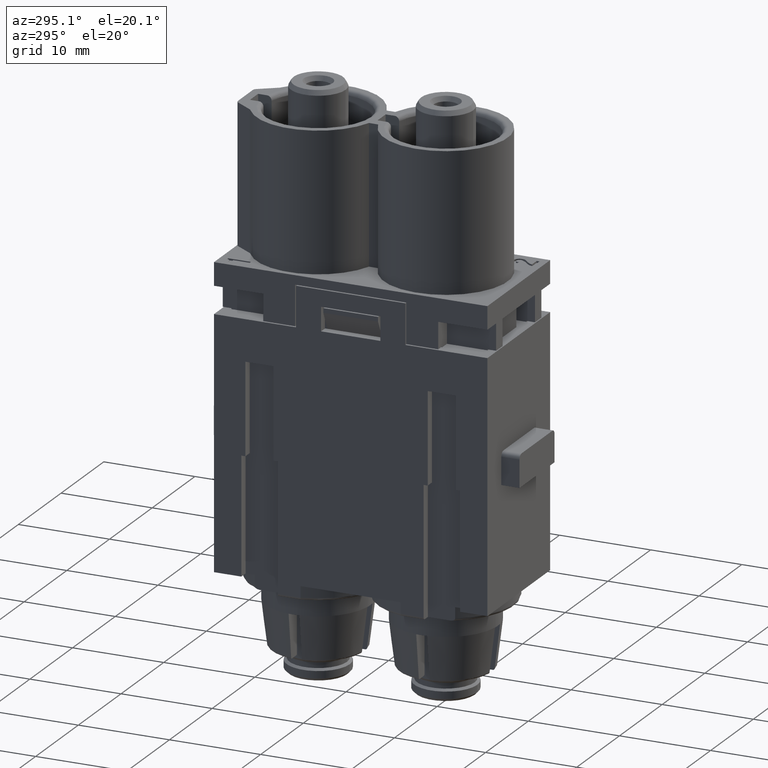
[diagram: clean part render]
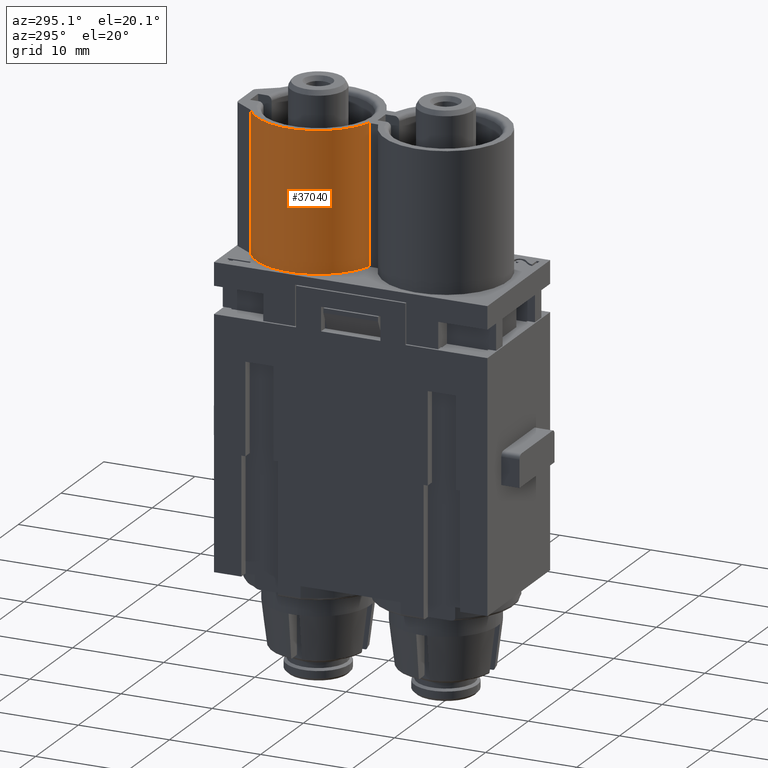
[diagram: same view with one face highlighted and labeled with its STEP entity id]
A machine part, auxiliary view. The second image highlights one B-rep face of the part: STEP entity #37040.
In plain terms, the highlighted cylindrical surface (partial cylindrical patch) has radius 6.8 mm, axis along (0, 0, -1).
Its self-contained STEP definition (entity closure, byte-faithful):
#10220=CARTESIAN_POINT('',(64.6468229999997,67.4552842762907,
0.399999999999977));
#10230=VERTEX_POINT('',#10220);
#10260=CARTESIAN_POINT('',(66.6468229999996,73.9545149999996,
0.40000000000002));
#10270=DIRECTION('',(8.32223191721754E-16,2.1514028680299E-15,-1.));
#10280=DIRECTION('',(2.4492935982947E-16,-1.,-2.1514028680299E-15));
#10290=AXIS2_PLACEMENT_3D('',#10260,#10270,#10280);
#10300=CIRCLE('',#10290,6.80000000000012);
#10310=CARTESIAN_POINT('',(63.0595469184608,79.7313177761744,
0.399999999999963));
#10320=VERTEX_POINT('',#10310);
#10330=EDGE_CURVE('',#10230,#10320,#10300,.T.);
#36730=CARTESIAN_POINT('',(66.6468229999996,73.9545149999996,
0.20000000000006));
#36740=DIRECTION('',(8.32223191721754E-16,2.1514028680299E-15,-1.));
#36750=DIRECTION('',(2.4492935982947E-16,-1.,-2.1514028680299E-15));
#36760=AXIS2_PLACEMENT_3D('',#36730,#36740,#36750);
#36770=CYLINDRICAL_SURFACE('',#36760,6.80000000000012);
#36780=CARTESIAN_POINT('',(63.0595469184608,79.7313177761744,
0.200000000000067));
#36790=DIRECTION('',(-8.32223191721754E-16,-2.1514028680299E-15,1.));
#36800=VECTOR('',#36790,1.);
#36810=LINE('',#36780,#36800);
#36820=CARTESIAN_POINT('',(63.0595469184608,79.7313177761745,
-14.7999999999997));
#36830=VERTEX_POINT('',#36820);
#36840=EDGE_CURVE('',#36830,#10320,#36810,.T.);
#36850=ORIENTED_EDGE('',*,*,#36840,.F.);
#36860=ORIENTED_EDGE('',*,*,#10330,.T.);
#36870=CARTESIAN_POINT('',(64.6468229999997,67.4552842762907,
0.200000000000045));
#36880=DIRECTION('',(8.32223191721754E-16,2.1514028680299E-15,-1.));
#36890=VECTOR('',#36880,1.);
#36900=LINE('',#36870,#36890);
#36910=CARTESIAN_POINT('',(64.6468229999997,67.4552842762907,
-14.7999999999997));
#36920=VERTEX_POINT('',#36910);
#36930=EDGE_CURVE('',#10230,#36920,#36900,.T.);
#36940=ORIENTED_EDGE('',*,*,#36930,.F.);
#36950=CARTESIAN_POINT('',(66.6468229999996,73.9545149999996,
-14.7999999999997));
#36960=DIRECTION('',(8.32223191721754E-16,2.1514028680299E-15,-1.));
#36970=DIRECTION('',(2.4492935982947E-16,-1.,-2.1514028680299E-15));
#36980=AXIS2_PLACEMENT_3D('',#36950,#36960,#36970);
#36990=CIRCLE('',#36980,6.80000000000012);
#37000=EDGE_CURVE('',#36920,#36830,#36990,.T.);
#37010=ORIENTED_EDGE('',*,*,#37000,.F.);
#37020=EDGE_LOOP('',(#37010,#36940,#36860,#36850));
#37030=FACE_OUTER_BOUND('',#37020,.T.);
#37040=ADVANCED_FACE('',(#37030),#36770,.T.);